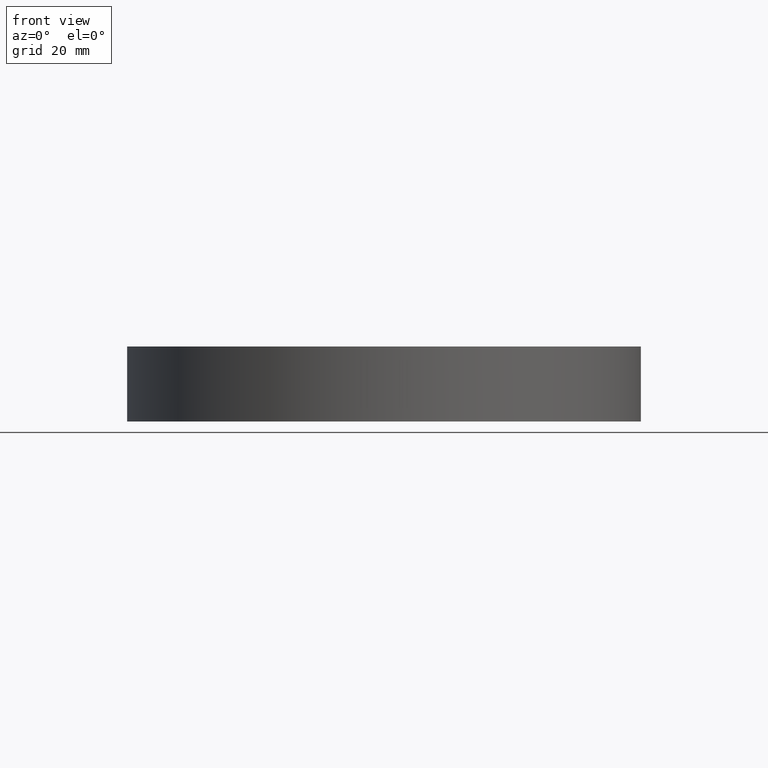
[diagram: clean part render]
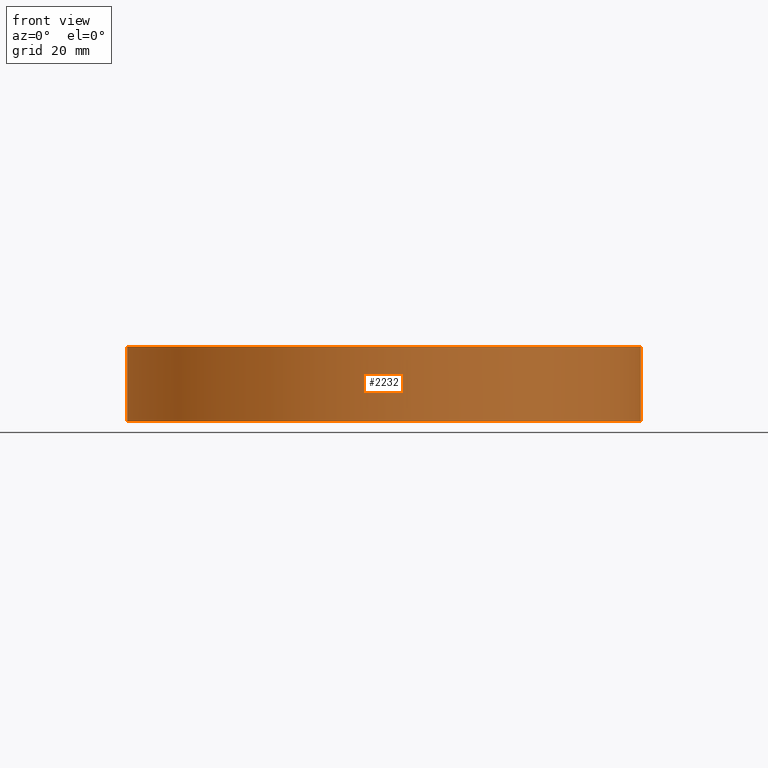
[diagram: same view with one face highlighted and labeled with its STEP entity id]
A machine part, front view. The second image highlights one B-rep face of the part: STEP entity #2232.
In plain terms, the highlighted cylindrical surface (partial cylindrical patch) has radius 55 mm, axis along (-0, -0, -1).
Its self-contained STEP definition (entity closure, byte-faithful):
#581 = FACE_OUTER_BOUND ( 'NONE', #3104, .T. ) ;
#729 = DIRECTION ( 'NONE',  ( -0.0000000000000000000, -0.0000000000000000000, 1.000000000000000000 ) ) ;
#772 = CARTESIAN_POINT ( 'NONE',  ( 0.5000000000000000000, 54.99772722576815900, -8.000000000000000000 ) ) ;
#859 = ORIENTED_EDGE ( 'NONE', *, *, #12057, .F. ) ;
#1051 = DIRECTION ( 'NONE',  ( -1.000000000000000000, 0.0000000000000000000, 0.0000000000000000000 ) ) ;
#2232 = ADVANCED_FACE ( 'NONE', ( #581 ), #4996, .T. ) ;
#2771 = CARTESIAN_POINT ( 'NONE',  ( -0.5000000000000000000, 54.99772722576815900, -8.000000000000000000 ) ) ;
#2820 = CARTESIAN_POINT ( 'NONE',  ( -0.5000000000000000000, 54.99772722576815900, -8.000000000000000000 ) ) ;
#2903 = VECTOR ( 'NONE', #6537, 1000.000000000000000 ) ;
#3053 = AXIS2_PLACEMENT_3D ( 'NONE', #5944, #10491, #8747 ) ;
#3104 = EDGE_LOOP ( 'NONE', ( #8838, #4373, #4547, #859 ) ) ;
#3169 = DIRECTION ( 'NONE',  ( -0.0000000000000000000, -0.0000000000000000000, -1.000000000000000000 ) ) ;
#3341 = CIRCLE ( 'NONE', #3053, 55.00000000000000000 ) ;
#3918 = CARTESIAN_POINT ( 'NONE',  ( 0.0000000000000000000, 0.0000000000000000000, 0.0000000000000000000 ) ) ;
#4008 = DIRECTION ( 'NONE',  ( -0.0000000000000000000, -0.0000000000000000000, -1.000000000000000000 ) ) ;
#4373 = ORIENTED_EDGE ( 'NONE', *, *, #7938, .T. ) ;
#4547 = ORIENTED_EDGE ( 'NONE', *, *, #5990, .T. ) ;
#4996 = CYLINDRICAL_SURFACE ( 'NONE', #9170, 55.00000000000000000 ) ;
#5369 = CARTESIAN_POINT ( 'NONE',  ( 0.5000000000000000000, 54.99772722576815900, -8.000000000000000000 ) ) ;
#5489 = AXIS2_PLACEMENT_3D ( 'NONE', #8801, #3169, #9759 ) ;
#5527 = VERTEX_POINT ( 'NONE', #2771 ) ;
#5814 = VECTOR ( 'NONE', #729, 1000.000000000000000 ) ;
#5944 = CARTESIAN_POINT ( 'NONE',  ( 0.0000000000000000000, 0.0000000000000000000, 8.000000000000000000 ) ) ;
#5962 = LINE ( 'NONE', #5369, #5814 ) ;
#5990 = EDGE_CURVE ( 'NONE', #6026, #10108, #3341, .T. ) ;
#6026 = VERTEX_POINT ( 'NONE', #6837 ) ;
#6537 = DIRECTION ( 'NONE',  ( -0.0000000000000000000, -0.0000000000000000000, 1.000000000000000000 ) ) ;
#6837 = CARTESIAN_POINT ( 'NONE',  ( 0.5000000000000000000, 54.99772722576815900, 8.000000000000000000 ) ) ;
#7938 = EDGE_CURVE ( 'NONE', #11769, #6026, #5962, .T. ) ;
#8490 = LINE ( 'NONE', #2820, #2903 ) ;
#8509 = EDGE_CURVE ( 'NONE', #11769, #5527, #12250, .T. ) ;
#8747 = DIRECTION ( 'NONE',  ( -1.000000000000000000, 0.0000000000000000000, 0.0000000000000000000 ) ) ;
#8801 = CARTESIAN_POINT ( 'NONE',  ( 0.0000000000000000000, 0.0000000000000000000, -8.000000000000000000 ) ) ;
#8838 = ORIENTED_EDGE ( 'NONE', *, *, #8509, .F. ) ;
#9122 = CARTESIAN_POINT ( 'NONE',  ( -0.5000000000000000000, 54.99772722576815900, 8.000000000000001800 ) ) ;
#9170 = AXIS2_PLACEMENT_3D ( 'NONE', #3918, #4008, #1051 ) ;
#9759 = DIRECTION ( 'NONE',  ( -1.000000000000000000, 0.0000000000000000000, 0.0000000000000000000 ) ) ;
#10108 = VERTEX_POINT ( 'NONE', #9122 ) ;
#10491 = DIRECTION ( 'NONE',  ( -0.0000000000000000000, -0.0000000000000000000, -1.000000000000000000 ) ) ;
#11769 = VERTEX_POINT ( 'NONE', #772 ) ;
#12057 = EDGE_CURVE ( 'NONE', #5527, #10108, #8490, .T. ) ;
#12250 = CIRCLE ( 'NONE', #5489, 55.00000000000000000 ) ;